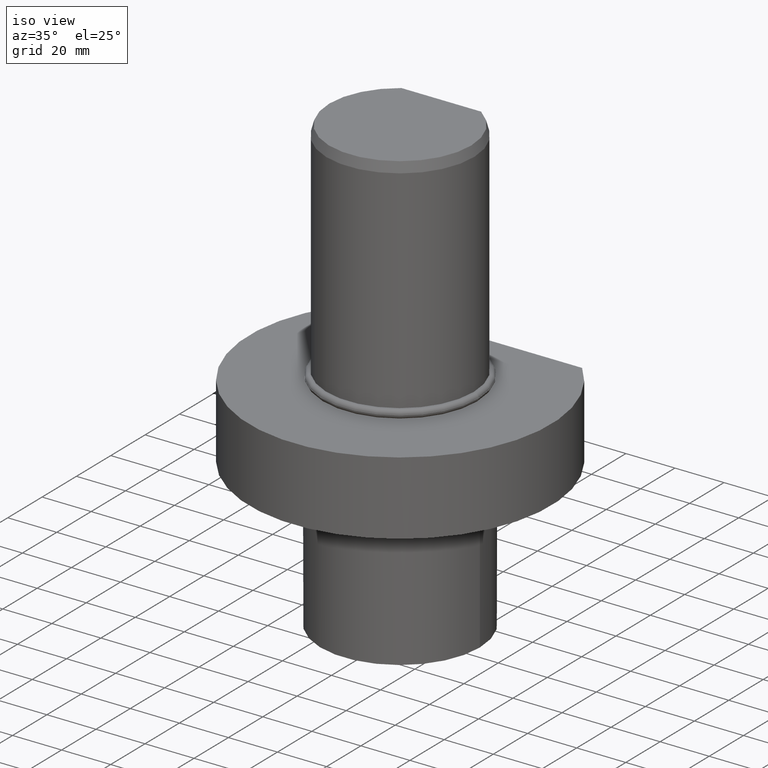
[diagram: clean part render]
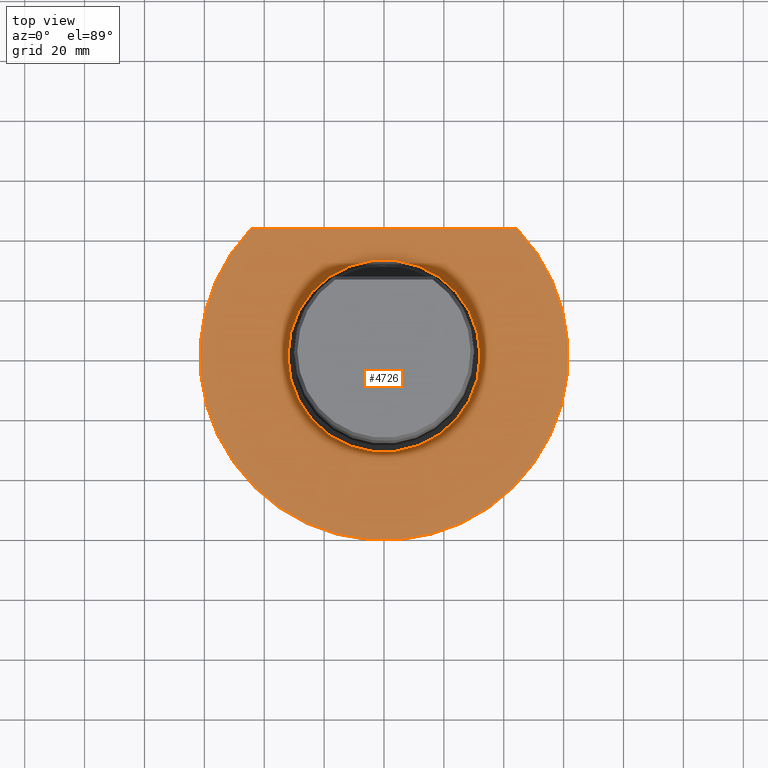
[diagram: tour spotlight — one face highlighted and labeled with its STEP entity id]
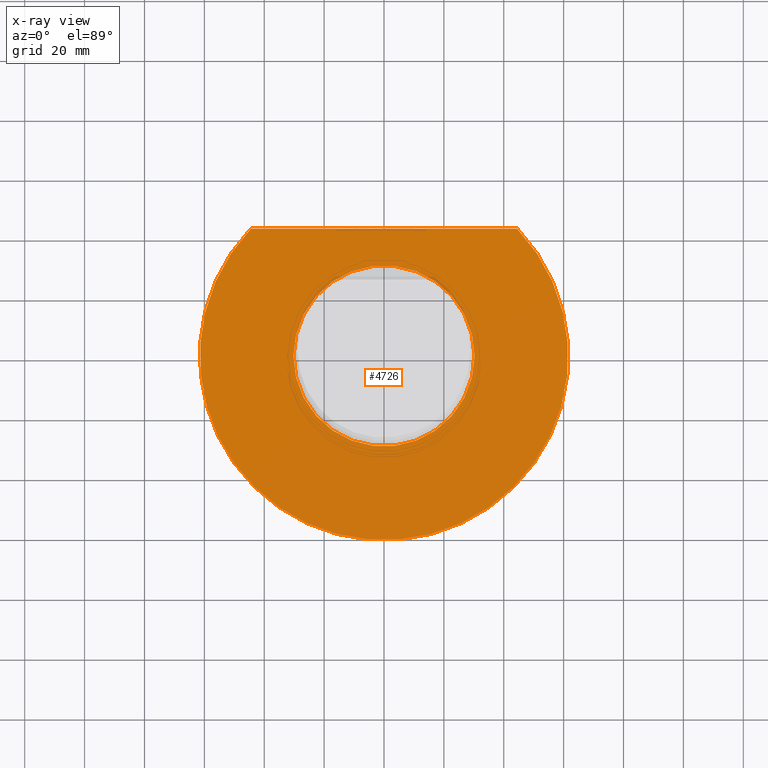
[diagram: x-ray of the same camera — body ghosted, this tour face saturated]
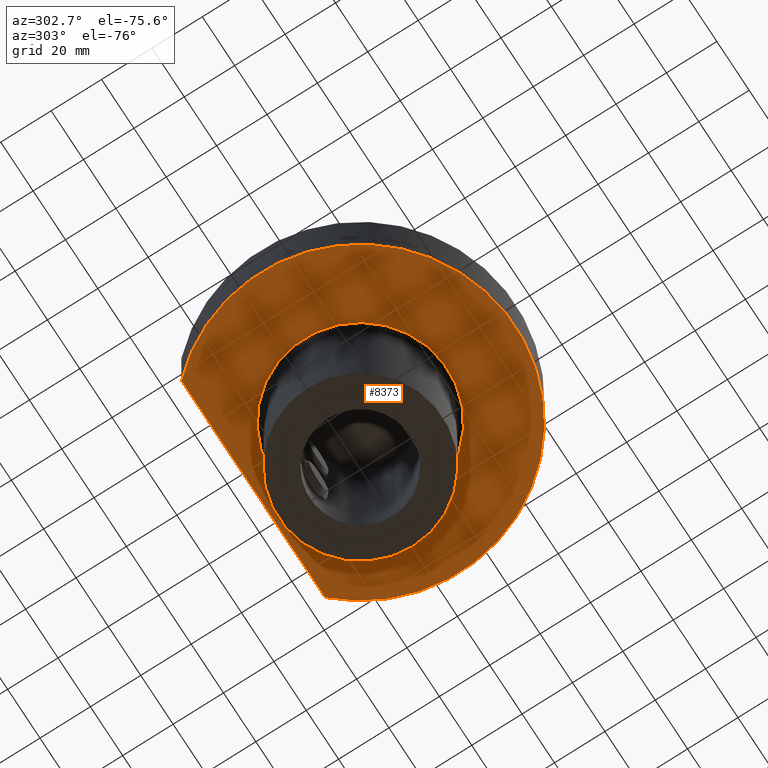
[diagram: tour spotlight — one face highlighted and labeled with its STEP entity id]
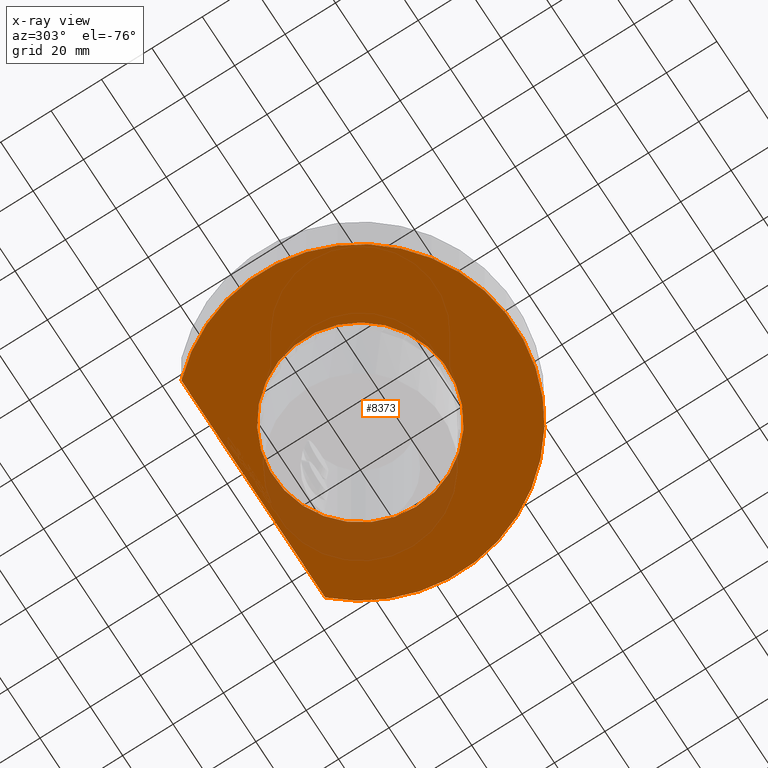
[diagram: x-ray of the same camera — body ghosted, this tour face saturated]
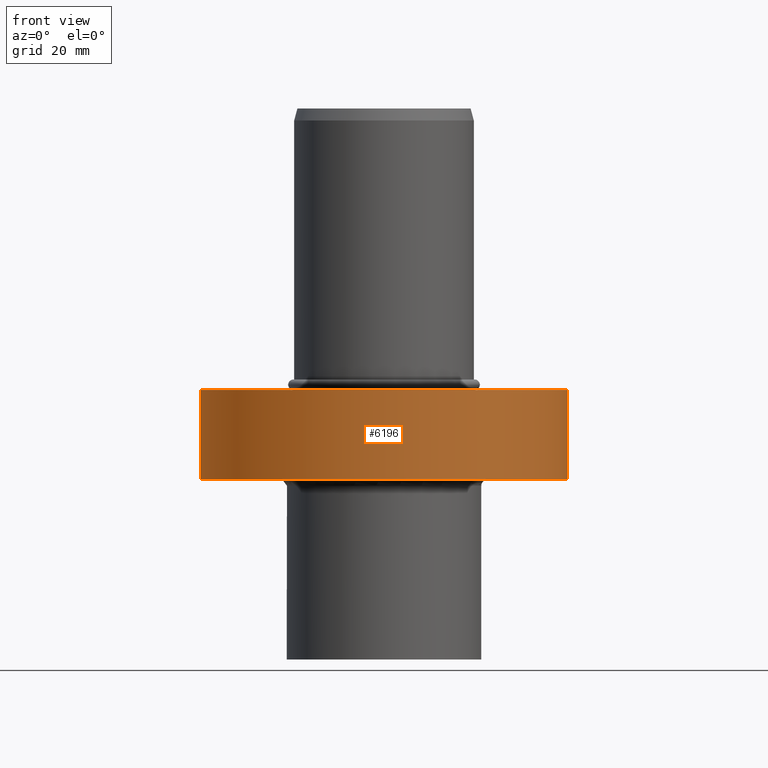
[diagram: tour spotlight — one face highlighted and labeled with its STEP entity id]
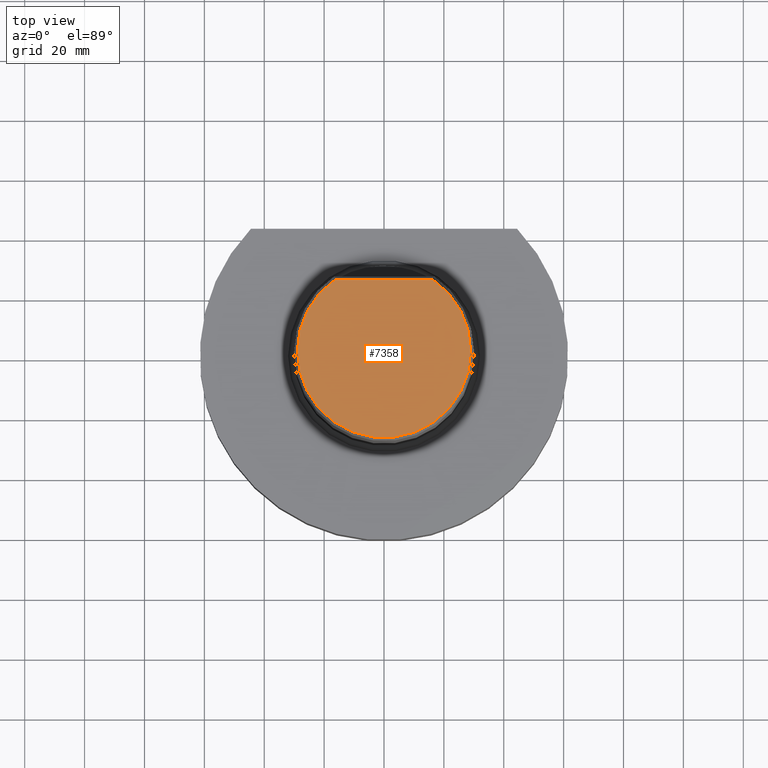
[diagram: tour spotlight — one face highlighted and labeled with its STEP entity id]
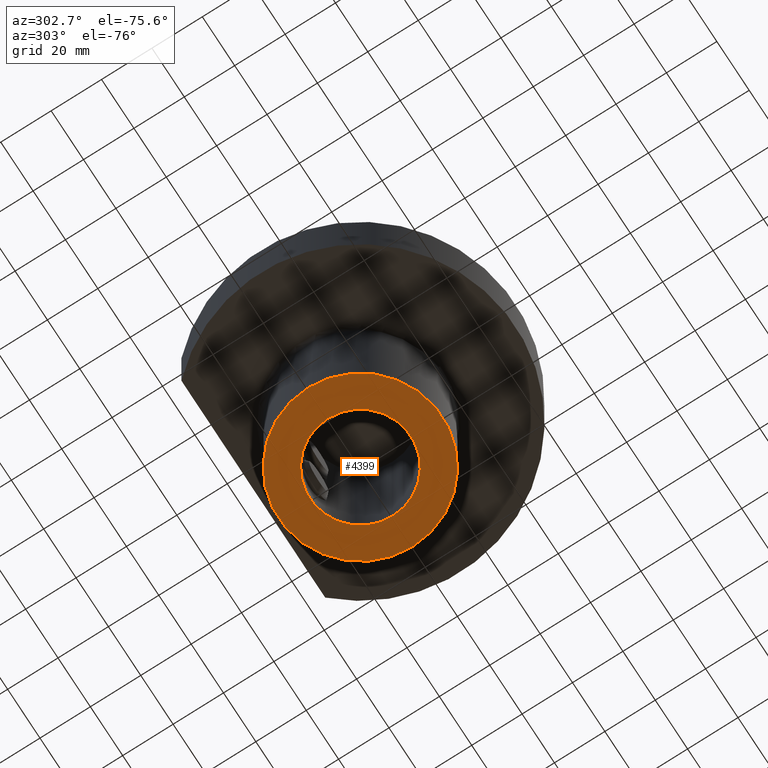
[diagram: tour spotlight — one face highlighted and labeled with its STEP entity id]
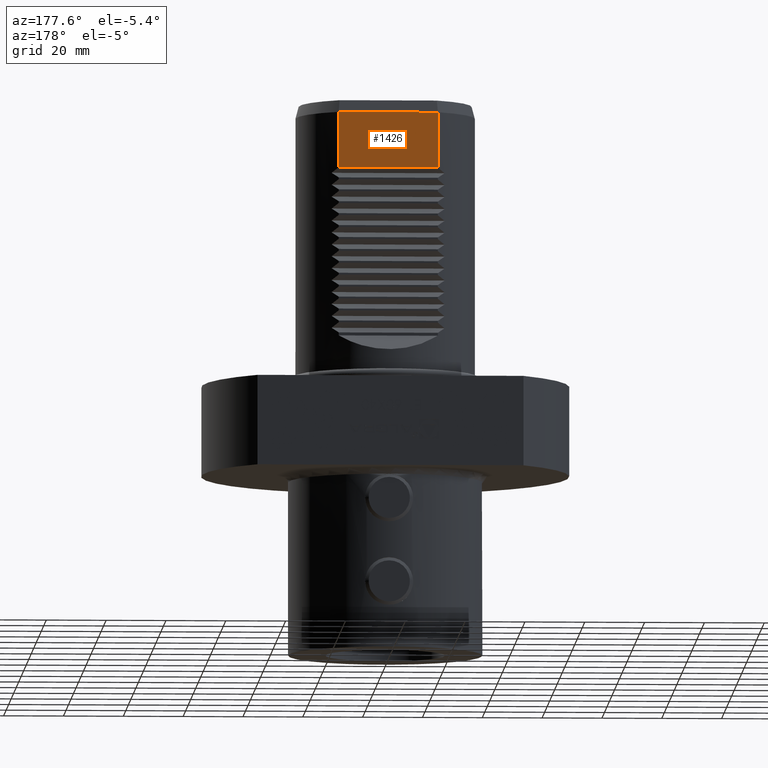
[diagram: tour spotlight — one face highlighted and labeled with its STEP entity id]
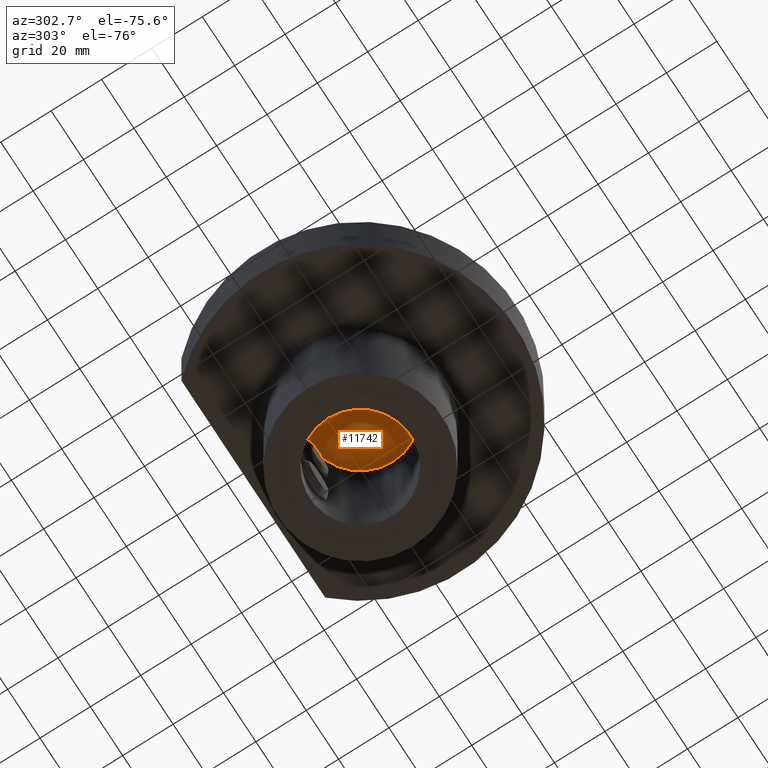
[diagram: tour spotlight — one face highlighted and labeled with its STEP entity id]
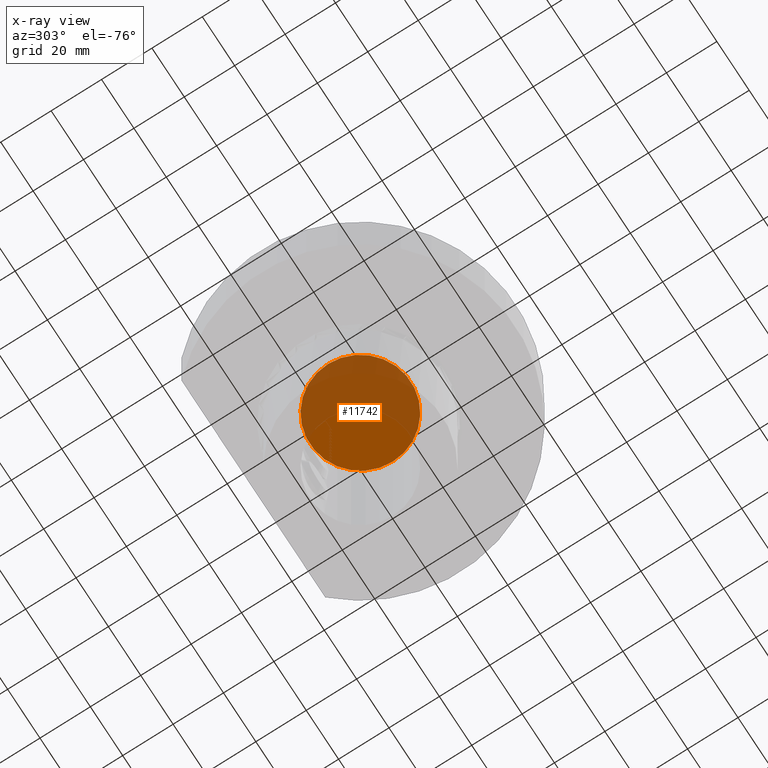
[diagram: x-ray of the same camera — body ghosted, this tour face saturated]
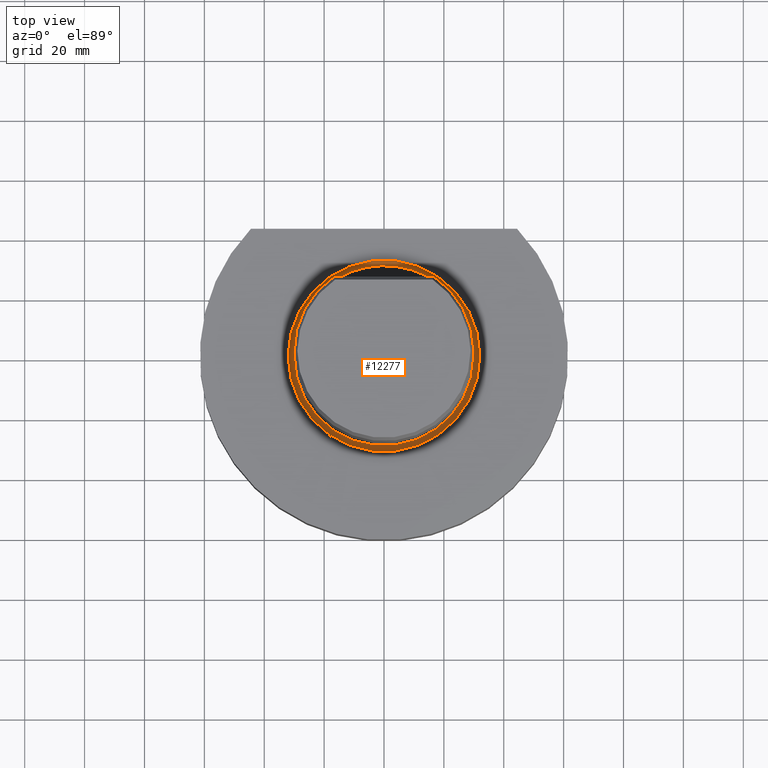
[diagram: tour spotlight — one face highlighted and labeled with its STEP entity id]
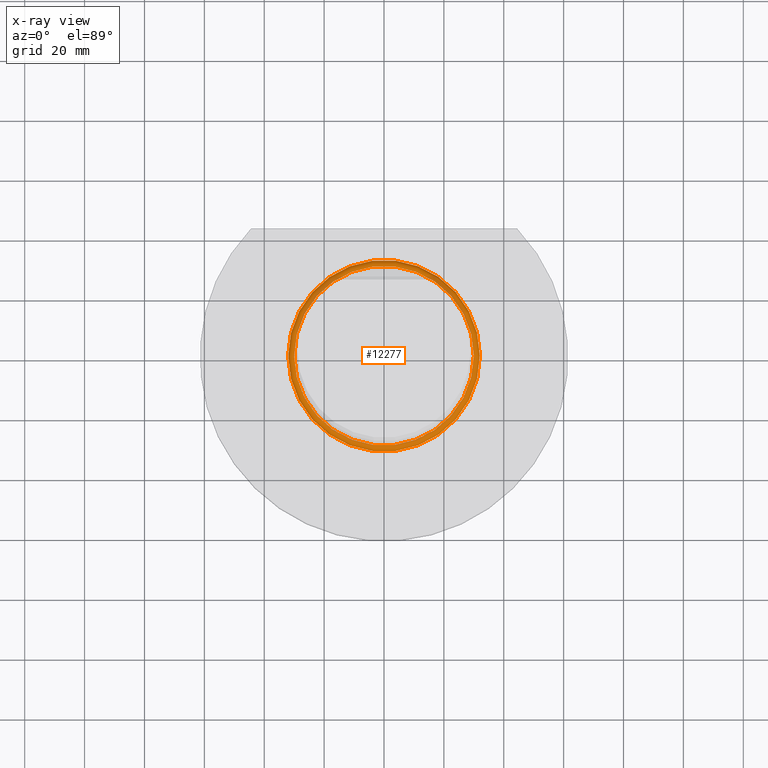
[diagram: x-ray of the same camera — body ghosted, this tour face saturated]
A machine part: a face-by-face anatomy tour. The part has 296 B-rep faces; the first image is the clean iso view, then the 8 largest visible faces are spotlighted one at a time (largest first), each with its STEP entity span.

Face 1 — top view, entity #4726. An x-ray twin of the same camera follows (body ghosted, this face saturated) — the face is partly hidden behind the body. In plain terms, the highlighted planar face has unit normal (-0, -0, -1).
Definition (entity closure, byte-faithful):
#318 = DIRECTION ( 'NONE',  ( -4.440892098500630106E-16, -1.224646799147350002E-16, -1.000000000000000000 ) ) ;
#764 = CIRCLE ( 'NONE', #2556, 30.23340579561260100 ) ;
#1123 = AXIS2_PLACEMENT_3D ( 'NONE', #4512, #10966, #12975 ) ;
#1445 = CARTESIAN_POINT ( 'NONE',  ( 0.000000000000000000, 0.000000000000000000, 0.000000000000000000 ) ) ;
#1545 = DIRECTION ( 'NONE',  ( -1.000000000000000000, 6.438943914347950006E-16, 4.440892098500630106E-16 ) ) ;
#1564 = CIRCLE ( 'NONE', #1123, 61.50000000000000000 ) ;
#2221 = DIRECTION ( 'NONE',  ( 4.974927482740569663E-16, 1.836970198721029688E-16, 1.000000000000000000 ) ) ;
#2422 = PLANE ( 'NONE',  #4149 ) ;
#2556 = AXIS2_PLACEMENT_3D ( 'NONE', #8532, #2221, #8683 ) ;
#2867 = CARTESIAN_POINT ( 'NONE',  ( -30.23340579561260100, 1.080750800247530095E-16, 1.504090013894411628E-14 ) ) ;
#3614 = EDGE_CURVE ( 'NONE', #9333, #9333, #764, .T. ) ;
#4149 = AXIS2_PLACEMENT_3D ( 'NONE', #1445, #318, #4430 ) ;
#4430 = DIRECTION ( 'NONE',  ( -1.000000000000000000, 0.000000000000000000, 4.440892098500630106E-16 ) ) ;
#4512 = CARTESIAN_POINT ( 'NONE',  ( 0.000000000000000000, 0.000000000000000000, 0.000000000000000000 ) ) ;
#4678 = LINE ( 'NONE', #10129, #10624 ) ;
#4726 = ADVANCED_FACE ( 'Defeature completata1_22', ( #5212, #9546 ), #2422, .F. ) ;
#5124 = ORIENTED_EDGE ( 'NONE', *, *, #11121, .F. ) ;
#5212 = FACE_BOUND ( 'NONE', #6681, .T. ) ;
#6681 = EDGE_LOOP ( 'NONE', ( #12624 ) ) ;
#7102 = VERTEX_POINT ( 'NONE', #11166 ) ;
#7658 = CARTESIAN_POINT ( 'NONE',  ( -44.45222154178569696, 42.50000000000000000, 1.453600304419530171E-14 ) ) ;
#8532 = CARTESIAN_POINT ( 'NONE',  ( 9.425724531835000044E-17, 1.080750800247530095E-16, 0.000000000000000000 ) ) ;
#8683 = DIRECTION ( 'NONE',  ( -1.000000000000000000, 0.000000000000000000, 4.974927482740570649E-16 ) ) ;
#8867 = VERTEX_POINT ( 'NONE', #7658 ) ;
#9239 = EDGE_CURVE ( 'NONE', #7102, #8867, #4678, .T. ) ;
#9333 = VERTEX_POINT ( 'NONE', #2867 ) ;
#9546 = FACE_OUTER_BOUND ( 'NONE', #13522, .T. ) ;
#10129 = CARTESIAN_POINT ( 'NONE',  ( 22.22611077089289822, 42.50000000000000000, -1.507512486666199762E-14 ) ) ;
#10624 = VECTOR ( 'NONE', #1545, 1000.000000000000000 ) ;
#10966 = DIRECTION ( 'NONE',  ( -4.440892098500630106E-16, -1.224646799147350002E-16, -1.000000000000000000 ) ) ;
#11121 = EDGE_CURVE ( 'NONE', #7102, #8867, #1564, .T. ) ;
#11166 = CARTESIAN_POINT ( 'NONE',  ( 44.45222154178579643, 42.50000000000000000, -2.494550083694779877E-14 ) ) ;
#12124 = ORIENTED_EDGE ( 'NONE', *, *, #9239, .T. ) ;
#12624 = ORIENTED_EDGE ( 'NONE', *, *, #3614, .F. ) ;
#12975 = DIRECTION ( 'NONE',  ( -1.000000000000000000, 4.440892098500630106E-16, 4.440892098500630106E-16 ) ) ;
#13522 = EDGE_LOOP ( 'NONE', ( #12124, #5124 ) ) ;

Face 2 — auxiliary view, entity #8373. An x-ray twin of the same camera follows (body ghosted, this face saturated) — the face is partly hidden behind the body. In plain terms, the highlighted planar face has unit normal (0, 0, 1).
Definition (entity closure, byte-faithful):
#86 = FACE_OUTER_BOUND ( 'NONE', #6721, .T. ) ;
#517 = AXIS2_PLACEMENT_3D ( 'NONE', #813, #10664, #9459 ) ;
#653 = VECTOR ( 'NONE', #13810, 1000.000000000000000 ) ;
#813 = CARTESIAN_POINT ( 'NONE',  ( -1.332267629550189900E-14, -3.673940397442059967E-15, -30.00000000000000000 ) ) ;
#2547 = CIRCLE ( 'NONE', #7766, 34.50000000000000000 ) ;
#3270 = FACE_BOUND ( 'NONE', #11113, .T. ) ;
#3922 = CARTESIAN_POINT ( 'NONE',  ( 22.22611077089289822, 42.50000000000000000, -30.00000000000000000 ) ) ;
#4164 = CIRCLE ( 'NONE', #517, 61.50000000000000000 ) ;
#4340 = EDGE_CURVE ( 'NONE', #7183, #7183, #2547, .T. ) ;
#4924 = CARTESIAN_POINT ( 'NONE',  ( 44.45222154178569696, 42.50000000000000000, -30.00000000000000000 ) ) ;
#4970 = EDGE_CURVE ( 'NONE', #6072, #7626, #4164, .T. ) ;
#5198 = LINE ( 'NONE', #3922, #653 ) ;
#5595 = CARTESIAN_POINT ( 'NONE',  ( -1.332267629550189900E-14, -3.673940397442059967E-15, -30.00000000000000000 ) ) ;
#6072 = VERTEX_POINT ( 'NONE', #7049 ) ;
#6714 = DIRECTION ( 'NONE',  ( -4.440892098500630106E-16, -1.224646799147350002E-16, -1.000000000000000000 ) ) ;
#6721 = EDGE_LOOP ( 'NONE', ( #8910, #7265 ) ) ;
#7049 = CARTESIAN_POINT ( 'NONE',  ( -44.45222154178569696, 42.50000000000000000, -30.00000000000000000 ) ) ;
#7183 = VERTEX_POINT ( 'NONE', #11242 ) ;
#7265 = ORIENTED_EDGE ( 'NONE', *, *, #4970, .F. ) ;
#7626 = VERTEX_POINT ( 'NONE', #4924 ) ;
#7766 = AXIS2_PLACEMENT_3D ( 'NONE', #7783, #6714, #12126 ) ;
#7783 = CARTESIAN_POINT ( 'NONE',  ( -1.332267629550189900E-14, -3.673940397442059967E-15, -30.00000000000000000 ) ) ;
#8373 = ADVANCED_FACE ( 'Defeature completata1_27', ( #3270, #86 ), #12934, .F. ) ;
#8437 = ORIENTED_EDGE ( 'NONE', *, *, #4340, .F. ) ;
#8910 = ORIENTED_EDGE ( 'NONE', *, *, #9584, .F. ) ;
#9459 = DIRECTION ( 'NONE',  ( -1.000000000000000000, 4.440892098500630106E-16, 4.513101726118522915E-16 ) ) ;
#9584 = EDGE_CURVE ( 'NONE', #7626, #6072, #5198, .T. ) ;
#9934 = DIRECTION ( 'NONE',  ( 1.000000000000000000, 0.000000000000000000, -4.440892098500630106E-16 ) ) ;
#10664 = DIRECTION ( 'NONE',  ( 4.440892098500630106E-16, 1.224646799147350002E-16, 1.000000000000000000 ) ) ;
#10930 = DIRECTION ( 'NONE',  ( 4.440892098500630106E-16, 1.224646799147350002E-16, 1.000000000000000000 ) ) ;
#11113 = EDGE_LOOP ( 'NONE', ( #8437 ) ) ;
#11242 = CARTESIAN_POINT ( 'NONE',  ( 34.49999999999998579, -1.899501813726923364E-14, -30.00000000000001421 ) ) ;
#11918 = AXIS2_PLACEMENT_3D ( 'NONE', #5595, #10930, #9934 ) ;
#12126 = DIRECTION ( 'NONE',  ( 1.000000000000000000, -4.440892098500630106E-16, -4.022547190670857145E-16 ) ) ;
#12934 = PLANE ( 'NONE',  #11918 ) ;
#13810 = DIRECTION ( 'NONE',  ( -1.000000000000000000, 6.438943914347950006E-16, 4.440892098500630106E-16 ) ) ;

Face 3 — front view, entity #6196. In plain terms, the highlighted cylindrical surface (partial cylindrical patch) has radius 61.5 mm, axis along (-0, -0, -1).
Definition (entity closure, byte-faithful):
#517 = AXIS2_PLACEMENT_3D ( 'NONE', #813, #10664, #9459 ) ;
#813 = CARTESIAN_POINT ( 'NONE',  ( -1.332267629550189900E-14, -3.673940397442059967E-15, -30.00000000000000000 ) ) ;
#1045 = DIRECTION ( 'NONE',  ( -2.603921899779599925E-16, -1.000000000000000000, 1.224646799147350002E-16 ) ) ;
#1123 = AXIS2_PLACEMENT_3D ( 'NONE', #4512, #10966, #12975 ) ;
#1564 = CIRCLE ( 'NONE', #1123, 61.50000000000000000 ) ;
#1780 = CARTESIAN_POINT ( 'NONE',  ( -44.45222154178569696, 42.50000000000000000, 1.453600304419530171E-14 ) ) ;
#1860 = DIRECTION ( 'NONE',  ( -4.440892098500630106E-16, -1.224646799147350002E-16, -1.000000000000000000 ) ) ;
#3554 = VECTOR ( 'NONE', #8318, 1000.000000000000000 ) ;
#3610 = ORIENTED_EDGE ( 'NONE', *, *, #4970, .T. ) ;
#4164 = CIRCLE ( 'NONE', #517, 61.50000000000000000 ) ;
#4512 = CARTESIAN_POINT ( 'NONE',  ( 0.000000000000000000, 0.000000000000000000, 0.000000000000000000 ) ) ;
#4924 = CARTESIAN_POINT ( 'NONE',  ( 44.45222154178569696, 42.50000000000000000, -30.00000000000000000 ) ) ;
#4970 = EDGE_CURVE ( 'NONE', #6072, #7626, #4164, .T. ) ;
#5497 = AXIS2_PLACEMENT_3D ( 'NONE', #12965, #6546, #1045 ) ;
#5536 = ORIENTED_EDGE ( 'NONE', *, *, #13577, .T. ) ;
#6072 = VERTEX_POINT ( 'NONE', #7049 ) ;
#6196 = ADVANCED_FACE ( 'Defeature completata1_77', ( #10827 ), #12896, .T. ) ;
#6488 = EDGE_LOOP ( 'NONE', ( #3610, #5536, #7828, #7197 ) ) ;
#6546 = DIRECTION ( 'NONE',  ( -4.440892098500630106E-16, -1.224646799147350002E-16, -1.000000000000000000 ) ) ;
#7049 = CARTESIAN_POINT ( 'NONE',  ( -44.45222154178569696, 42.50000000000000000, -30.00000000000000000 ) ) ;
#7102 = VERTEX_POINT ( 'NONE', #11166 ) ;
#7197 = ORIENTED_EDGE ( 'NONE', *, *, #7340, .T. ) ;
#7340 = EDGE_CURVE ( 'NONE', #8867, #6072, #10450, .T. ) ;
#7572 = VECTOR ( 'NONE', #1860, 1000.000000000000000 ) ;
#7626 = VERTEX_POINT ( 'NONE', #4924 ) ;
#7658 = CARTESIAN_POINT ( 'NONE',  ( -44.45222154178569696, 42.50000000000000000, 1.453600304419530171E-14 ) ) ;
#7828 = ORIENTED_EDGE ( 'NONE', *, *, #11121, .T. ) ;
#8318 = DIRECTION ( 'NONE',  ( 4.440892098500630106E-16, 1.224646799147350002E-16, 1.000000000000000000 ) ) ;
#8867 = VERTEX_POINT ( 'NONE', #7658 ) ;
#9459 = DIRECTION ( 'NONE',  ( -1.000000000000000000, 4.440892098500630106E-16, 4.513101726118522915E-16 ) ) ;
#10450 = LINE ( 'NONE', #1780, #7572 ) ;
#10664 = DIRECTION ( 'NONE',  ( 4.440892098500630106E-16, 1.224646799147350002E-16, 1.000000000000000000 ) ) ;
#10670 = LINE ( 'NONE', #10739, #3554 ) ;
#10739 = CARTESIAN_POINT ( 'NONE',  ( 44.45222154178579643, 42.50000000000000000, -2.494550083694779877E-14 ) ) ;
#10827 = FACE_OUTER_BOUND ( 'NONE', #6488, .T. ) ;
#10966 = DIRECTION ( 'NONE',  ( -4.440892098500630106E-16, -1.224646799147350002E-16, -1.000000000000000000 ) ) ;
#11121 = EDGE_CURVE ( 'NONE', #7102, #8867, #1564, .T. ) ;
#11166 = CARTESIAN_POINT ( 'NONE',  ( 44.45222154178579643, 42.50000000000000000, -2.494550083694779877E-14 ) ) ;
#12896 = CYLINDRICAL_SURFACE ( 'NONE', #5497, 61.50000000000000000 ) ;
#12965 = CARTESIAN_POINT ( 'NONE',  ( 0.000000000000000000, 0.000000000000000000, 0.000000000000000000 ) ) ;
#12975 = DIRECTION ( 'NONE',  ( -1.000000000000000000, 4.440892098500630106E-16, 4.440892098500630106E-16 ) ) ;
#13577 = EDGE_CURVE ( 'NONE', #7626, #7102, #10670, .T. ) ;

Face 4 — top view, entity #7358. In plain terms, the highlighted planar face has unit normal (-0, -0, -1).
Definition (entity closure, byte-faithful):
#745 = VERTEX_POINT ( 'NONE', #4914 ) ;
#810 = FACE_OUTER_BOUND ( 'NONE', #3864, .T. ) ;
#1417 = LINE ( 'NONE', #5662, #11488 ) ;
#1464 = AXIS2_PLACEMENT_3D ( 'NONE', #1711, #7018, #2980 ) ;
#1711 = CARTESIAN_POINT ( 'NONE',  ( 4.174438572590589854E-14, 1.151167991198510077E-14, 94.00000000000000000 ) ) ;
#2980 = DIRECTION ( 'NONE',  ( -1.000000000000000000, 0.000000000000000000, 4.440892098500630106E-16 ) ) ;
#3653 = CARTESIAN_POINT ( 'NONE',  ( 4.174438572590589854E-14, 1.151167991198510077E-14, 94.00000000000000000 ) ) ;
#3864 = EDGE_LOOP ( 'NONE', ( #4199, #12384 ) ) ;
#4199 = ORIENTED_EDGE ( 'NONE', *, *, #13615, .F. ) ;
#4670 = VERTEX_POINT ( 'NONE', #8689 ) ;
#4744 = DIRECTION ( 'NONE',  ( 1.000000000000000000, -4.440892098500630106E-16, -4.440892098500630106E-16 ) ) ;
#4914 = CARTESIAN_POINT ( 'NONE',  ( -16.25675343673369966, 23.92820323027550344, 94.00000000000000000 ) ) ;
#5575 = DIRECTION ( 'NONE',  ( -4.440892098500630106E-16, -1.224646799147350002E-16, -1.000000000000000000 ) ) ;
#5662 = CARTESIAN_POINT ( 'NONE',  ( 5.237064259157069904E-14, 23.92820323027550344, 94.00000000000000000 ) ) ;
#7018 = DIRECTION ( 'NONE',  ( -4.440892098500630106E-16, -1.224646799147350002E-16, -1.000000000000000000 ) ) ;
#7065 = CIRCLE ( 'NONE', #12309, 28.92820323027549989 ) ;
#7300 = PLANE ( 'NONE',  #1464 ) ;
#7358 = ADVANCED_FACE ( 'Defeature completata1_24', ( #810 ), #7300, .F. ) ;
#8689 = CARTESIAN_POINT ( 'NONE',  ( 16.25675343673379913, 23.92820323027550344, 94.00000000000000000 ) ) ;
#11488 = VECTOR ( 'NONE', #4744, 1000.000000000000000 ) ;
#12309 = AXIS2_PLACEMENT_3D ( 'NONE', #3653, #5575, #13324 ) ;
#12384 = ORIENTED_EDGE ( 'NONE', *, *, #14054, .F. ) ;
#13324 = DIRECTION ( 'NONE',  ( -1.000000000000000000, 4.440892098500629120E-16, 4.797321042494035060E-16 ) ) ;
#13615 = EDGE_CURVE ( 'NONE', #745, #4670, #1417, .T. ) ;
#14054 = EDGE_CURVE ( 'NONE', #4670, #745, #7065, .T. ) ;

Face 5 — auxiliary view, entity #4399. In plain terms, the highlighted planar face has unit normal (-0, -0, -1).
Definition (entity closure, byte-faithful):
#417 = ORIENTED_EDGE ( 'NONE', *, *, #12433, .T. ) ;
#1442 = DIRECTION ( 'NONE',  ( -4.440892098500630106E-16, -1.224646799147350002E-16, -1.000000000000000000 ) ) ;
#1448 = EDGE_LOOP ( 'NONE', ( #11832 ) ) ;
#1904 = PLANE ( 'NONE',  #4383 ) ;
#2245 = EDGE_CURVE ( 'NONE', #4449, #4449, #8384, .T. ) ;
#3553 = DIRECTION ( 'NONE',  ( -1.000000000000000000, 0.000000000000000000, 6.938893903907242183E-16 ) ) ;
#4383 = AXIS2_PLACEMENT_3D ( 'NONE', #6223, #4935, #9423 ) ;
#4399 = ADVANCED_FACE ( 'Defeature completata1_28', ( #12696, #5083 ), #1904, .T. ) ;
#4449 = VERTEX_POINT ( 'NONE', #7771 ) ;
#4622 = CARTESIAN_POINT ( 'NONE',  ( -3.996802888650559759E-14, -1.102182119232619962E-14, -90.00000000000000000 ) ) ;
#4935 = DIRECTION ( 'NONE',  ( -4.440892098500630106E-16, -1.224646799147350002E-16, -1.000000000000000000 ) ) ;
#5083 = FACE_BOUND ( 'NONE', #1448, .T. ) ;
#5653 = AXIS2_PLACEMENT_3D ( 'NONE', #5687, #1442, #3553 ) ;
#5687 = CARTESIAN_POINT ( 'NONE',  ( -3.996802888650567332E-14, -1.102182119232614913E-14, -90.00000000000000000 ) ) ;
#6223 = CARTESIAN_POINT ( 'NONE',  ( -3.996802888650559759E-14, -1.102182119232619962E-14, -90.00000000000000000 ) ) ;
#6737 = DIRECTION ( 'NONE',  ( -4.440892098500630106E-16, -1.224646799147350002E-16, -1.000000000000000000 ) ) ;
#7718 = CIRCLE ( 'NONE', #10452, 32.50000000000000000 ) ;
#7771 = CARTESIAN_POINT ( 'NONE',  ( -20.00000000000000355, -1.102182119232614913E-14, -89.99999999999998579 ) ) ;
#8384 = CIRCLE ( 'NONE', #5653, 19.99999999999996092 ) ;
#9012 = DIRECTION ( 'NONE',  ( 1.000000000000000000, -4.440892098500630106E-16, -4.270088556250602192E-16 ) ) ;
#9423 = DIRECTION ( 'NONE',  ( -1.000000000000000000, 0.000000000000000000, 4.440892098500630106E-16 ) ) ;
#10452 = AXIS2_PLACEMENT_3D ( 'NONE', #4622, #6737, #9012 ) ;
#11503 = EDGE_LOOP ( 'NONE', ( #417 ) ) ;
#11832 = ORIENTED_EDGE ( 'NONE', *, *, #2245, .F. ) ;
#12433 = EDGE_CURVE ( 'NONE', #13685, #13685, #7718, .T. ) ;
#12696 = FACE_OUTER_BOUND ( 'NONE', #11503, .T. ) ;
#13541 = CARTESIAN_POINT ( 'NONE',  ( 32.49999999999995737, -2.545472051245324569E-14, -90.00000000000001421 ) ) ;
#13685 = VERTEX_POINT ( 'NONE', #13541 ) ;

Face 6 — auxiliary view, entity #1426. In plain terms, the highlighted planar face has unit normal (-0, -1, -0).
Definition (entity closure, byte-faithful):
#80 = CARTESIAN_POINT ( 'NONE',  ( 5.284661597215749550E-14, 25.00000000000000000, 94.00000000000000000 ) ) ;
#176 = VECTOR ( 'NONE', #13462, 1000.000000000000000 ) ;
#1188 = EDGE_CURVE ( 'NONE', #13166, #6463, #6497, .T. ) ;
#1287 = LINE ( 'NONE', #5676, #12732 ) ;
#1426 = ADVANCED_FACE ( 'Defeature completata1_36', ( #9725 ), #9799, .F. ) ;
#1535 = EDGE_CURVE ( 'NONE', #5015, #2329, #7299, .T. ) ;
#2329 = VERTEX_POINT ( 'NONE', #6881 ) ;
#2699 = DIRECTION ( 'NONE',  ( -1.000000000000000000, 4.440892098500630106E-16, 4.440892098500630106E-16 ) ) ;
#3543 = CARTESIAN_POINT ( 'NONE',  ( 16.58312395177700083, 25.00000000000000000, 90.00000000000000000 ) ) ;
#3943 = ORIENTED_EDGE ( 'NONE', *, *, #1535, .F. ) ;
#4821 = LINE ( 'NONE', #13560, #13673 ) ;
#5013 = VECTOR ( 'NONE', #2699, 1000.000000000000000 ) ;
#5015 = VERTEX_POINT ( 'NONE', #3543 ) ;
#5163 = EDGE_CURVE ( 'NONE', #13166, #5015, #4821, .T. ) ;
#5394 = DIRECTION ( 'NONE',  ( -1.000000000000000000, 4.440892098500630106E-16, 0.000000000000000000 ) ) ;
#5447 = CARTESIAN_POINT ( 'NONE',  ( 4.281019982954600086E-14, 25.00000000000000000, 71.40000000000000568 ) ) ;
#5676 = CARTESIAN_POINT ( 'NONE',  ( -16.58312395177700083, 25.00000000000000000, 4.302769414721900113E-15 ) ) ;
#6463 = VERTEX_POINT ( 'NONE', #13024 ) ;
#6497 = LINE ( 'NONE', #5447, #176 ) ;
#6881 = CARTESIAN_POINT ( 'NONE',  ( -16.58312395177690135, 25.00000000000000000, 90.00000000000000000 ) ) ;
#7299 = LINE ( 'NONE', #11656, #5013 ) ;
#7439 = DIRECTION ( 'NONE',  ( -4.440892098500630106E-16, -1.000000000000000000, -4.617679218022489417E-17 ) ) ;
#8769 = ORIENTED_EDGE ( 'NONE', *, *, #12539, .F. ) ;
#9286 = DIRECTION ( 'NONE',  ( 4.440892098500630106E-16, 1.224646799147350002E-16, 1.000000000000000000 ) ) ;
#9370 = ORIENTED_EDGE ( 'NONE', *, *, #1188, .T. ) ;
#9481 = CARTESIAN_POINT ( 'NONE',  ( 16.58312395177700083, 25.00000000000000000, 71.40000000000000568 ) ) ;
#9725 = FACE_OUTER_BOUND ( 'NONE', #10334, .T. ) ;
#9799 = PLANE ( 'NONE',  #12281 ) ;
#10016 = DIRECTION ( 'NONE',  ( -4.440892098500630106E-16, -1.224646799147350002E-16, -1.000000000000000000 ) ) ;
#10334 = EDGE_LOOP ( 'NONE', ( #3943, #12990, #9370, #8769 ) ) ;
#11656 = CARTESIAN_POINT ( 'NONE',  ( 5.107025913275719455E-14, 25.00000000000000000, 90.00000000000000000 ) ) ;
#12281 = AXIS2_PLACEMENT_3D ( 'NONE', #80, #7439, #5394 ) ;
#12539 = EDGE_CURVE ( 'NONE', #2329, #6463, #1287, .T. ) ;
#12732 = VECTOR ( 'NONE', #10016, 1000.000000000000000 ) ;
#12990 = ORIENTED_EDGE ( 'NONE', *, *, #5163, .F. ) ;
#13024 = CARTESIAN_POINT ( 'NONE',  ( -16.58312395177690135, 25.00000000000000000, 71.40000000000000568 ) ) ;
#13166 = VERTEX_POINT ( 'NONE', #9481 ) ;
#13462 = DIRECTION ( 'NONE',  ( -1.000000000000000000, 4.440892098500630106E-16, 4.440892098500630106E-16 ) ) ;
#13560 = CARTESIAN_POINT ( 'NONE',  ( 16.58312395177700083, 25.00000000000000000, -1.042600341045870012E-14 ) ) ;
#13673 = VECTOR ( 'NONE', #9286, 1000.000000000000000 ) ;

Face 7 — auxiliary view, entity #11742. An x-ray twin of the same camera follows (body ghosted, this face saturated) — the face is partly hidden behind the body. In plain terms, the highlighted planar face has unit normal (-0, -0, -1).
Definition (entity closure, byte-faithful):
#266 = PLANE ( 'NONE',  #3619 ) ;
#683 = CARTESIAN_POINT ( 'NONE',  ( -19.99999999999996803, -2.081899558550495941E-15, -16.99999999999998934 ) ) ;
#1055 = CARTESIAN_POINT ( 'NONE',  ( -7.549516567451070786E-15, -2.081899558550495941E-15, -17.00000000000000000 ) ) ;
#1317 = DIRECTION ( 'NONE',  ( -1.000000000000000000, 0.000000000000000000, 4.440892098500630106E-16 ) ) ;
#3127 = DIRECTION ( 'NONE',  ( -1.000000000000000000, 0.000000000000000000, 5.204170427930431144E-16 ) ) ;
#3611 = AXIS2_PLACEMENT_3D ( 'NONE', #6671, #4220, #3127 ) ;
#3619 = AXIS2_PLACEMENT_3D ( 'NONE', #1055, #5373, #1317 ) ;
#4220 = DIRECTION ( 'NONE',  ( -4.440892098500630106E-16, -1.224646799147350002E-16, -1.000000000000000000 ) ) ;
#5373 = DIRECTION ( 'NONE',  ( -4.440892098500630106E-16, -1.224646799147350002E-16, -1.000000000000000000 ) ) ;
#6165 = ORIENTED_EDGE ( 'NONE', *, *, #10382, .T. ) ;
#6330 = CIRCLE ( 'NONE', #3611, 19.99999999999996092 ) ;
#6671 = CARTESIAN_POINT ( 'NONE',  ( -7.549516567451070786E-15, -2.081899558550495941E-15, -17.00000000000000000 ) ) ;
#6976 = VERTEX_POINT ( 'NONE', #683 ) ;
#10382 = EDGE_CURVE ( 'NONE', #6976, #6976, #6330, .T. ) ;
#11742 = ADVANCED_FACE ( 'Defeature completata1_79', ( #12180 ), #266, .T. ) ;
#12180 = FACE_OUTER_BOUND ( 'NONE', #13829, .T. ) ;
#13829 = EDGE_LOOP ( 'NONE', ( #6165 ) ) ;

Face 8 — top view, entity #12277. An x-ray twin of the same camera follows (body ghosted, this face saturated) — the face is partly hidden behind the body. In plain terms, the highlighted toroidal blend (fillet) surface has major radius 30.2334 mm and minor (blend) radius 1.765 mm.
Definition (entity closure, byte-faithful):
#253 = AXIS2_PLACEMENT_3D ( 'NONE', #3059, #1995, #7376 ) ;
#342 = EDGE_LOOP ( 'NONE', ( #6692 ) ) ;
#609 = VERTEX_POINT ( 'NONE', #11458 ) ;
#1225 = FACE_OUTER_BOUND ( 'NONE', #4567, .T. ) ;
#1641 = AXIS2_PLACEMENT_3D ( 'NONE', #13256, #9912, #7987 ) ;
#1743 = VERTEX_POINT ( 'NONE', #13606 ) ;
#1824 = TOROIDAL_SURFACE ( 'NONE', #253, 30.23340579561260100, 1.765000000000000124 ) ;
#1995 = DIRECTION ( 'NONE',  ( -5.481999291190779685E-16, -2.449293598294715289E-16, -1.000000000000000000 ) ) ;
#2940 = CARTESIAN_POINT ( 'NONE',  ( 1.749265572480700057E-15, 6.465521545702379770E-16, 3.514498995305369800 ) ) ;
#2967 = AXIS2_PLACEMENT_3D ( 'NONE', #2940, #4301, #4172 ) ;
#3059 = CARTESIAN_POINT ( 'NONE',  ( 9.723319460220659477E-16, 4.323003200990170175E-16, 1.765000000000000124 ) ) ;
#4172 = DIRECTION ( 'NONE',  ( -1.000000000000000000, 4.440892098500630106E-16, 4.481368979606751332E-16 ) ) ;
#4301 = DIRECTION ( 'NONE',  ( 4.440892098500630106E-16, 1.224646799147350002E-16, 1.000000000000000000 ) ) ;
#4567 = EDGE_LOOP ( 'NONE', ( #7072 ) ) ;
#6522 = FACE_OUTER_BOUND ( 'NONE', #342, .T. ) ;
#6692 = ORIENTED_EDGE ( 'NONE', *, *, #13152, .F. ) ;
#7072 = ORIENTED_EDGE ( 'NONE', *, *, #14016, .F. ) ;
#7376 = DIRECTION ( 'NONE',  ( 1.000000000000000000, -1.062181104213419946E-13, -5.481999291190520347E-16 ) ) ;
#7987 = DIRECTION ( 'NONE',  ( 1.000000000000000000, -1.062181104213420072E-13, -6.031475547249382989E-16 ) ) ;
#9912 = DIRECTION ( 'NONE',  ( -6.029429767392420161E-16, -2.449293598294655138E-16, -1.000000000000000000 ) ) ;
#10942 = CIRCLE ( 'NONE', #1641, 31.99681159122509655 ) ;
#11458 = CARTESIAN_POINT ( 'NONE',  ( -29.99999999999999645, 1.396922845007212820E-14, 3.514498995305383122 ) ) ;
#12277 = ADVANCED_FACE ( 'Defeature completata1_20', ( #6522, #1225 ), #1824, .T. ) ;
#12743 = CIRCLE ( 'NONE', #2967, 30.00000000000000000 ) ;
#13152 = EDGE_CURVE ( 'NONE', #609, #609, #12743, .T. ) ;
#13256 = CARTESIAN_POINT ( 'NONE',  ( 1.013649167524419944E-15, 4.506700220862269545E-16, 1.840000000000000080 ) ) ;
#13606 = CARTESIAN_POINT ( 'NONE',  ( 31.99681159122509655, -3.398190196705536517E-12, 1.839999999999980762 ) ) ;
#14016 = EDGE_CURVE ( 'NONE', #1743, #1743, #10942, .T. ) ;